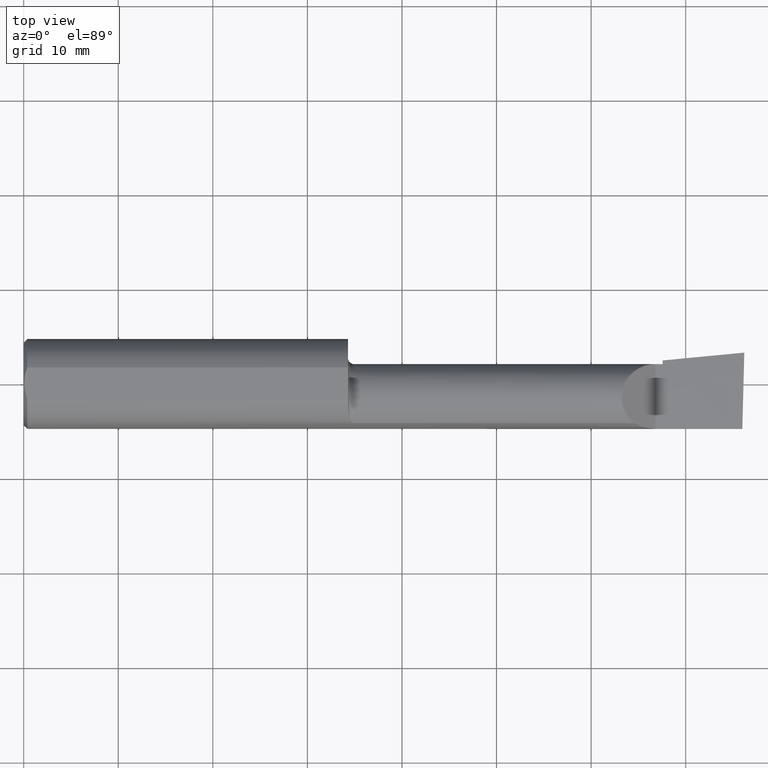
[diagram: clean part render]
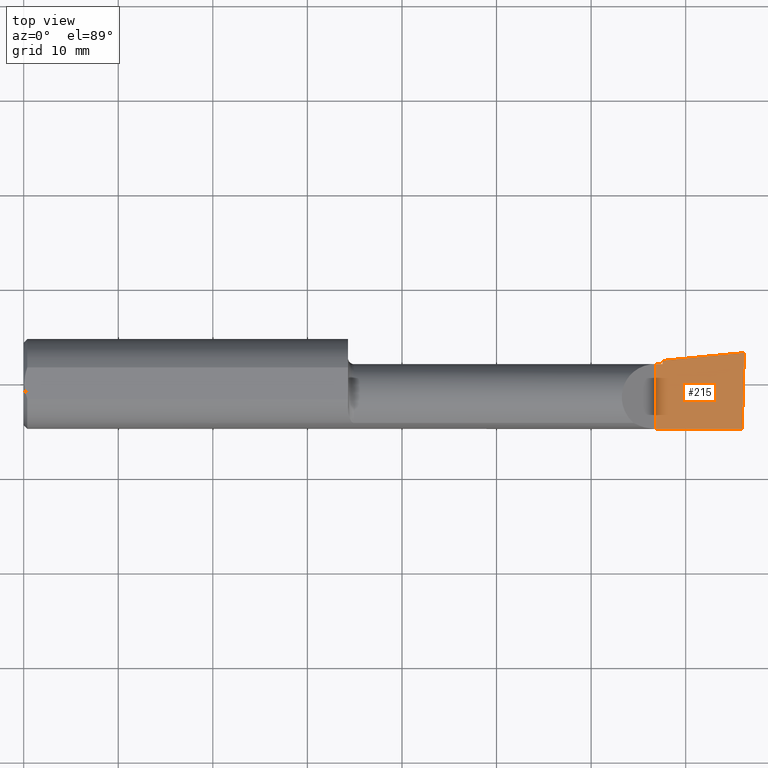
[diagram: same view with one face highlighted and labeled with its STEP entity id]
A machine part, top view. The second image highlights one B-rep face of the part: STEP entity #215.
In plain terms, the highlighted planar face has unit normal (-0, 0, -1).
Its self-contained STEP definition (entity closure, byte-faithful):
#1 = LINE ( 'NONE', #24, #16 ) ;
#16 = VECTOR ( 'NONE', #419, 39.37007874015748143 ) ;
#24 = CARTESIAN_POINT ( 'NONE',  ( 1.047026079080030980, -0.05740000000000000657, 2.081593536574432036E-16 ) ) ;
#44 = ORIENTED_EDGE ( 'NONE', *, *, #383, .F. ) ;
#47 = DIRECTION ( 'NONE',  ( -1.415561931153809475E-16, 0.0000000000000000000, -1.000000000000000000 ) ) ;
#52 = EDGE_CURVE ( 'NONE', #306, #272, #503, .T. ) ;
#61 = DIRECTION ( 'NONE',  ( 0.02617694830786174848, 0.9996573249755575929, -3.650474420802213197E-18 ) ) ;
#73 = ORIENTED_EDGE ( 'NONE', *, *, #556, .T. ) ;
#108 = DIRECTION ( 'NONE',  ( -0.0000000000000000000, 1.000000000000000000, -0.0000000000000000000 ) ) ;
#119 = EDGE_CURVE ( 'NONE', #525, #408, #159, .T. ) ;
#120 = CARTESIAN_POINT ( 'NONE',  ( 2.629999999999999893, -0.2500000000000000555, -1.592040838891560883E-17 ) ) ;
#128 = VECTOR ( 'NONE', #129, 39.37007874015748143 ) ;
#129 = DIRECTION ( 'NONE',  ( -5.691349986800549142E-18, 1.000000000000000000, 8.056458378187594471E-34 ) ) ;
#145 = CARTESIAN_POINT ( 'NONE',  ( 2.659999999999999698, 0.09791172361284160297, 3.564207929233843464E-16 ) ) ;
#159 = LINE ( 'NONE', #337, #434 ) ;
#177 = FACE_OUTER_BOUND ( 'NONE', #515, .T. ) ;
#192 = EDGE_CURVE ( 'NONE', #272, #595, #1, .T. ) ;
#212 = CARTESIAN_POINT ( 'NONE',  ( 2.659999999999999698, -0.2500000000000000555, -2.016709418237695393E-17 ) ) ;
#215 = ADVANCED_FACE ( 'NONE', ( #177 ), #417, .F. ) ;
#228 = CARTESIAN_POINT ( 'NONE',  ( 2.659999999999999698, 0.08265000000000008451, 3.563723795045364098E-16 ) ) ;
#230 = ORIENTED_EDGE ( 'NONE', *, *, #512, .F. ) ;
#234 = VECTOR ( 'NONE', #108, 39.37007874015748143 ) ;
#272 = VERTEX_POINT ( 'NONE', #145 ) ;
#300 = CARTESIAN_POINT ( 'NONE',  ( 3.000000000000000444, -0.2500000000000000555, -6.829619984160658046E-17 ) ) ;
#303 = LINE ( 'NONE', #545, #486 ) ;
#306 = VERTEX_POINT ( 'NONE', #228 ) ;
#337 = CARTESIAN_POINT ( 'NONE',  ( 5.044671737413194975E-32, -0.1873499999999999610, 3.563723795045361633E-16 ) ) ;
#352 = LINE ( 'NONE', #533, #590 ) ;
#358 = ORIENTED_EDGE ( 'NONE', *, *, #119, .F. ) ;
#376 = VERTEX_POINT ( 'NONE', #438 ) ;
#383 = EDGE_CURVE ( 'NONE', #408, #376, #587, .T. ) ;
#397 = DIRECTION ( 'NONE',  ( -1.000000000000000000, 0.0000000000000000000, 1.415561931153809475E-16 ) ) ;
#408 = VERTEX_POINT ( 'NONE', #431 ) ;
#411 = ORIENTED_EDGE ( 'NONE', *, *, #192, .F. ) ;
#417 = PLANE ( 'NONE',  #559 ) ;
#419 = DIRECTION ( 'NONE',  ( 0.9953961983671787417, 0.09584575252022456415, -1.409044964823803883E-16 ) ) ;
#431 = CARTESIAN_POINT ( 'NONE',  ( 2.629999999999999893, -0.1873499999999999888, -1.592040838891560883E-17 ) ) ;
#434 = VECTOR ( 'NONE', #487, 39.37007874015748143 ) ;
#438 = CARTESIAN_POINT ( 'NONE',  ( 2.629999999999999893, 0.08264999999999983471, -1.592040838891560883E-17 ) ) ;
#468 = ORIENTED_EDGE ( 'NONE', *, *, #52, .F. ) ;
#486 = VECTOR ( 'NONE', #524, 39.37007874015748143 ) ;
#487 = DIRECTION ( 'NONE',  ( -1.000000000000000000, -0.0000000000000000000, -0.0000000000000000000 ) ) ;
#503 = LINE ( 'NONE', #212, #128 ) ;
#512 = EDGE_CURVE ( 'NONE', #376, #306, #303, .T. ) ;
#515 = EDGE_LOOP ( 'NONE', ( #358, #73, #411, #468, #230, #44 ) ) ;
#524 = DIRECTION ( 'NONE',  ( 1.000000000000000000, 5.691349986800549142E-18, 0.0000000000000000000 ) ) ;
#525 = VERTEX_POINT ( 'NONE', #537 ) ;
#533 = CARTESIAN_POINT ( 'NONE',  ( 2.990039159128064394, -0.2497391662021644920, -6.688618112754726443E-17 ) ) ;
#537 = CARTESIAN_POINT ( 'NONE',  ( 2.991672876941000592, -0.1873499999999999888, -6.711400925391220565E-17 ) ) ;
#545 = CARTESIAN_POINT ( 'NONE',  ( -7.970735656513664102E-19, 0.08264999999999998737, 3.563723795045361633E-16 ) ) ;
#556 = EDGE_CURVE ( 'NONE', #525, #595, #352, .T. ) ;
#559 = AXIS2_PLACEMENT_3D ( 'NONE', #300, #47, #397 ) ;
#587 = LINE ( 'NONE', #120, #234 ) ;
#590 = VECTOR ( 'NONE', #61, 39.37007874015748143 ) ;
#594 = CARTESIAN_POINT ( 'NONE',  ( 3.000000000000008882, 0.1306500000000266337, 8.389254413434159134E-14 ) ) ;
#595 = VERTEX_POINT ( 'NONE', #594 ) ;